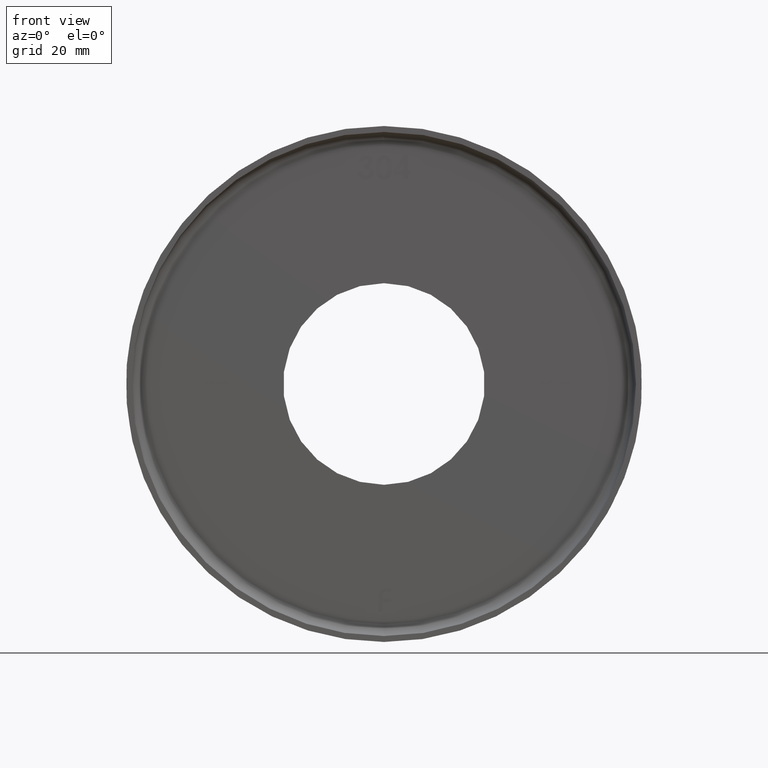
[diagram: clean part render]
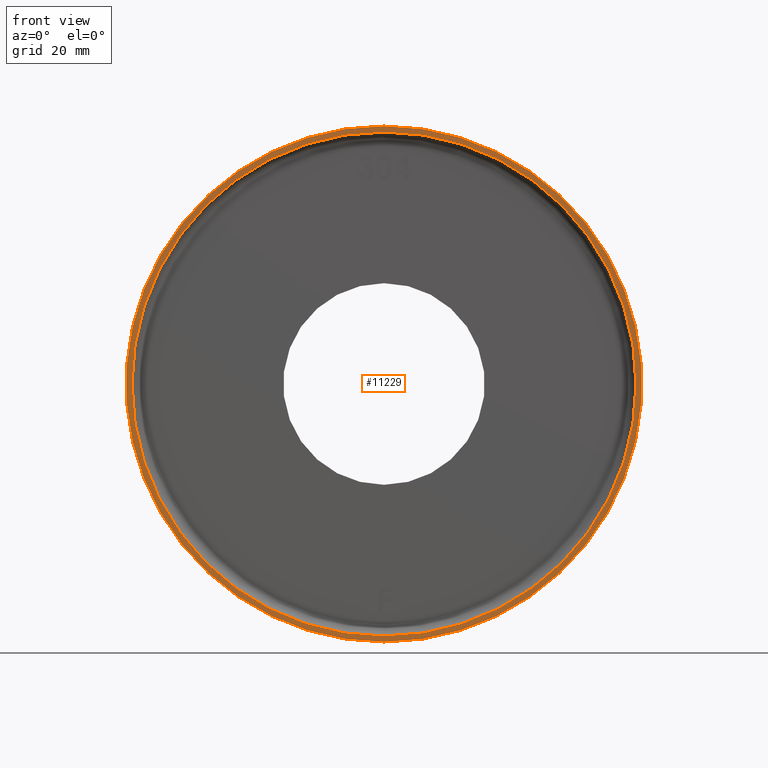
[diagram: same view with one face highlighted and labeled with its STEP entity id]
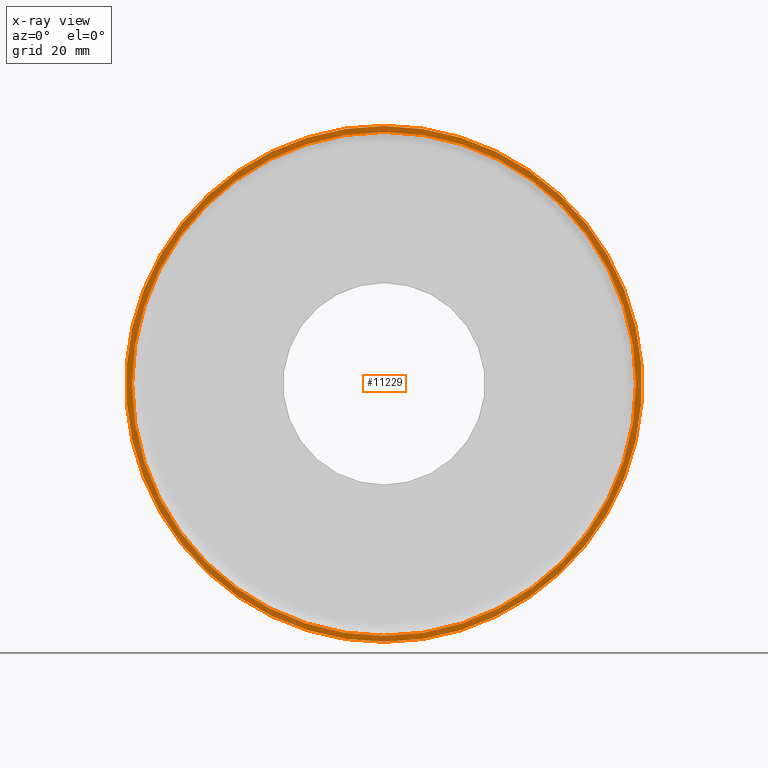
[diagram: x-ray of the same camera — body ghosted, the highlighted face saturated]
A machine part, front view. The second image highlights one B-rep face of the part: STEP entity #11229.
The next image is the same camera in x-ray: the body ghosted, the highlighted face saturated — about 0% of this face is hidden behind the body in this view.
In plain terms, the highlighted planar face has unit normal (0, -1, -0).
Its self-contained STEP definition (entity closure, byte-faithful):
#9 = FACE_BOUND ( 'NONE', #7427, .T. ) ;
#61 = EDGE_LOOP ( 'NONE', ( #4492, #10182 ) ) ;
#323 = DIRECTION ( 'NONE',  ( 0.000000000000000000, -1.000000000000000000, -0.000000000000000000 ) ) ;
#547 = CARTESIAN_POINT ( 'NONE',  ( 0.000000000000000000, -1.224646799147353207E-16, -42.49999999999999289 ) ) ;
#1007 = DIRECTION ( 'NONE',  ( 0.000000000000000000, 0.000000000000000000, -1.000000000000000000 ) ) ;
#1010 = EDGE_CURVE ( 'NONE', #2839, #3099, #10671, .T. ) ;
#1016 = DIRECTION ( 'NONE',  ( 0.000000000000000000, 0.000000000000000000, -1.000000000000000000 ) ) ;
#1845 = CARTESIAN_POINT ( 'NONE',  ( 0.000000000000000000, 0.000000000000000000, 0.000000000000000000 ) ) ;
#1919 = CIRCLE ( 'NONE', #3915, 42.49999999999999289 ) ;
#2033 = CARTESIAN_POINT ( 'NONE',  ( 5.327213576290986044E-15, 0.000000000000000000, 43.50000000000000000 ) ) ;
#2391 = AXIS2_PLACEMENT_3D ( 'NONE', #1845, #9799, #10704 ) ;
#2611 = CARTESIAN_POINT ( 'NONE',  ( 0.000000000000000000, 0.000000000000000000, -43.50000000000000000 ) ) ;
#2675 = EDGE_CURVE ( 'NONE', #10165, #13798, #9400, .T. ) ;
#2699 = DIRECTION ( 'NONE',  ( 0.000000000000000000, 0.000000000000000000, -1.000000000000000000 ) ) ;
#2839 = VERTEX_POINT ( 'NONE', #13445 ) ;
#2931 = CIRCLE ( 'NONE', #3638, 43.50000000000000000 ) ;
#3079 = EDGE_CURVE ( 'NONE', #3099, #2839, #1919, .T. ) ;
#3099 = VERTEX_POINT ( 'NONE', #547 ) ;
#3638 = AXIS2_PLACEMENT_3D ( 'NONE', #10159, #7811, #1016 ) ;
#3847 = DIRECTION ( 'NONE',  ( 0.000000000000000000, 0.000000000000000000, -1.000000000000000000 ) ) ;
#3915 = AXIS2_PLACEMENT_3D ( 'NONE', #11707, #10680, #3847 ) ;
#4492 = ORIENTED_EDGE ( 'NONE', *, *, #7857, .T. ) ;
#4969 = PLANE ( 'NONE',  #6068 ) ;
#6068 = AXIS2_PLACEMENT_3D ( 'NONE', #12775, #323, #2699 ) ;
#6390 = AXIS2_PLACEMENT_3D ( 'NONE', #6869, #10148, #1007 ) ;
#6869 = CARTESIAN_POINT ( 'NONE',  ( 0.000000000000000000, -1.224646799147353207E-16, 0.000000000000000000 ) ) ;
#7427 = EDGE_LOOP ( 'NONE', ( #13220, #13341 ) ) ;
#7811 = DIRECTION ( 'NONE',  ( -0.000000000000000000, -1.000000000000000000, -0.000000000000000000 ) ) ;
#7857 = EDGE_CURVE ( 'NONE', #13798, #10165, #2931, .T. ) ;
#8578 = FACE_OUTER_BOUND ( 'NONE', #61, .T. ) ;
#9400 = CIRCLE ( 'NONE', #2391, 43.50000000000000000 ) ;
#9799 = DIRECTION ( 'NONE',  ( -0.000000000000000000, -1.000000000000000000, -0.000000000000000000 ) ) ;
#10148 = DIRECTION ( 'NONE',  ( -0.000000000000000000, -1.000000000000000000, -0.000000000000000000 ) ) ;
#10159 = CARTESIAN_POINT ( 'NONE',  ( 0.000000000000000000, 0.000000000000000000, 0.000000000000000000 ) ) ;
#10165 = VERTEX_POINT ( 'NONE', #2033 ) ;
#10182 = ORIENTED_EDGE ( 'NONE', *, *, #2675, .T. ) ;
#10671 = CIRCLE ( 'NONE', #6390, 42.49999999999999289 ) ;
#10680 = DIRECTION ( 'NONE',  ( -0.000000000000000000, -1.000000000000000000, -0.000000000000000000 ) ) ;
#10704 = DIRECTION ( 'NONE',  ( 0.000000000000000000, 0.000000000000000000, -1.000000000000000000 ) ) ;
#11229 = ADVANCED_FACE ( 'NONE', ( #8578, #9 ), #4969, .T. ) ;
#11707 = CARTESIAN_POINT ( 'NONE',  ( 0.000000000000000000, -1.224646799147353207E-16, 0.000000000000000000 ) ) ;
#12775 = CARTESIAN_POINT ( 'NONE',  ( 42.49999999999999289, -6.123233995736766036E-17, 0.000000000000000000 ) ) ;
#13220 = ORIENTED_EDGE ( 'NONE', *, *, #3079, .F. ) ;
#13341 = ORIENTED_EDGE ( 'NONE', *, *, #1010, .F. ) ;
#13445 = CARTESIAN_POINT ( 'NONE',  ( 5.204748896376250107E-15, -1.224646799147353207E-16, 42.49999999999999289 ) ) ;
#13798 = VERTEX_POINT ( 'NONE', #2611 ) ;